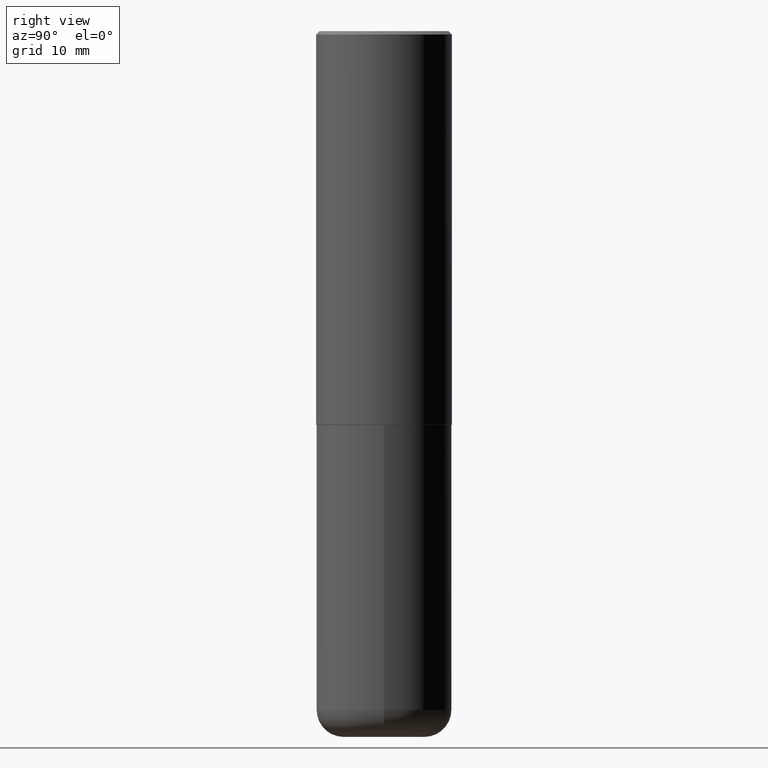
[diagram: clean part render]
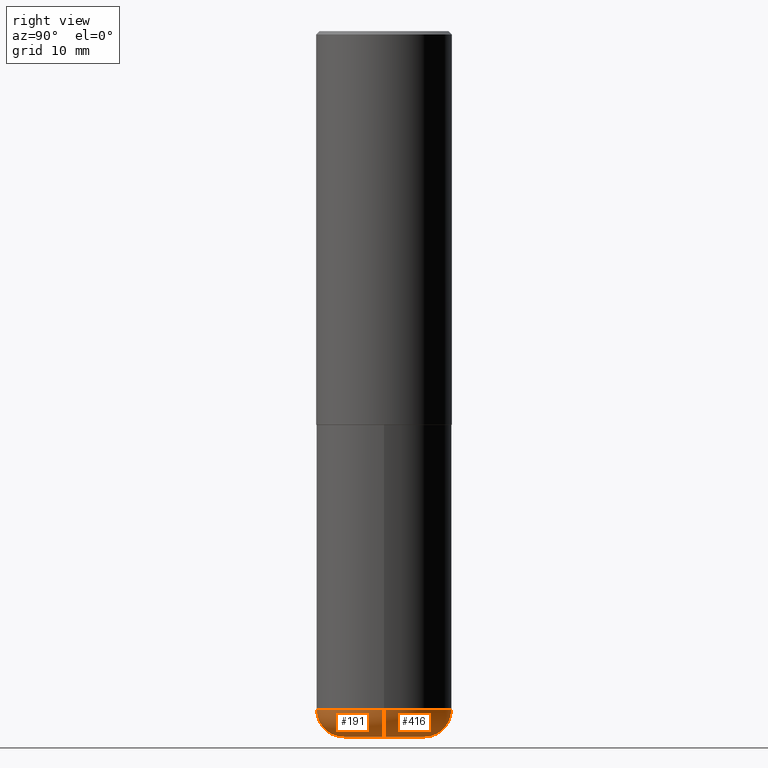
[diagram: same view with one multi-face feature highlighted, each face labeled with its STEP entity id]
A machine part, right view. The highlighted faces form ONE feature: a constant-radius fillet chain: 2 tangent blend faces with common blend radius 4.0005 mm. The faces share edges in the B-rep.
Their STEP definitions:
[1] entity #191 (Torus):
#1 = AXIS2_PLACEMENT_3D ( 'NONE', #91, #226, #31 ) ;
#11 = CARTESIAN_POINT ( 'NONE',  ( -0.3936999999999999389, -1.094855528033794942E-14, -3.937000000000000277 ) ) ;
#13 = DIRECTION ( 'NONE',  ( -2.445468806185136597E-29, 3.491481338843145583E-15, 1.000000000000000000 ) ) ;
#14 = FACE_OUTER_BOUND ( 'NONE', #178, .T. ) ;
#17 = TOROIDAL_SURFACE ( 'NONE', #117, 0.2362000000000000210, 0.1574999999999998346 ) ;
#22 = CARTESIAN_POINT ( 'NONE',  ( 0.2362000000000000210, -1.539533781549495994E-14, -3.937000000000000277 ) ) ;
#31 = DIRECTION ( 'NONE',  ( 1.000000000000000000, -6.982962677686262766E-15, 0.000000000000000000 ) ) ;
#41 = ORIENTED_EDGE ( 'NONE', *, *, #395, .F. ) ;
#55 = ORIENTED_EDGE ( 'NONE', *, *, #292, .T. ) ;
#85 = DIRECTION ( 'NONE',  ( 1.000000000000000000, -6.982962677686272233E-15, 0.000000000000000000 ) ) ;
#88 = DIRECTION ( 'NONE',  ( 7.105427357601001859E-15, 1.000000000000000000, -3.491481338843145583E-15 ) ) ;
#91 = CARTESIAN_POINT ( 'NONE',  ( 1.001297202692504102E-28, -1.429587034189325834E-14, -4.094500000000000028 ) ) ;
#99 = CIRCLE ( 'NONE', #330, 0.3937000000000000499 ) ;
#107 = CARTESIAN_POINT ( 'NONE',  ( 9.627810689950883669E-29, -1.374596203102546341E-14, -3.937000000000000277 ) ) ;
#117 = AXIS2_PLACEMENT_3D ( 'NONE', #107, #300, #248 ) ;
#137 = VERTEX_POINT ( 'NONE', #186 ) ;
#143 = CIRCLE ( 'NONE', #216, 0.1574999999999997791 ) ;
#153 = CARTESIAN_POINT ( 'NONE',  ( 0.2362000000000000766, -1.594524612636275486E-14, -4.094500000000000028 ) ) ;
#154 = EDGE_CURVE ( 'NONE', #197, #400, #99, .T. ) ;
#176 = ORIENTED_EDGE ( 'NONE', *, *, #265, .T. ) ;
#178 = EDGE_LOOP ( 'NONE', ( #41, #176, #55, #347 ) ) ;
#186 = CARTESIAN_POINT ( 'NONE',  ( -0.2362000000000000766, -1.178306184018292647E-14, -4.094500000000000028 ) ) ;
#191 = ADVANCED_FACE ( 'NONE', ( #14 ), #17, .T. ) ;
#197 = VERTEX_POINT ( 'NONE', #11 ) ;
#216 = AXIS2_PLACEMENT_3D ( 'NONE', #323, #88, #223 ) ;
#223 = DIRECTION ( 'NONE',  ( -1.000000000000000000, 7.105427357601006592E-15, 0.000000000000000000 ) ) ;
#226 = DIRECTION ( 'NONE',  ( -2.445468806185136597E-29, 3.491481338843145583E-15, 1.000000000000000000 ) ) ;
#248 = DIRECTION ( 'NONE',  ( 1.000000000000000000, -6.982962677686266711E-15, 4.883557194083112340E-29 ) ) ;
#252 = CIRCLE ( 'NONE', #408, 0.1574999999999997791 ) ;
#264 = VERTEX_POINT ( 'NONE', #153 ) ;
#265 = EDGE_CURVE ( 'NONE', #137, #264, #366, .T. ) ;
#277 = DIRECTION ( 'NONE',  ( 1.000000000000000000, -6.982962677686267499E-15, 0.000000000000000000 ) ) ;
#279 = DIRECTION ( 'NONE',  ( -6.982962677686266711E-15, -1.000000000000000000, 3.491481338843145583E-15 ) ) ;
#292 = EDGE_CURVE ( 'NONE', #264, #400, #252, .T. ) ;
#300 = DIRECTION ( 'NONE',  ( -2.445468806185136597E-29, 3.491481338843145583E-15, 1.000000000000000000 ) ) ;
#314 = CARTESIAN_POINT ( 'NONE',  ( 0.3936999999999999389, -1.649515443723054663E-14, -3.937000000000000277 ) ) ;
#323 = CARTESIAN_POINT ( 'NONE',  ( -0.2362000000000000210, -1.206766008916010702E-14, -3.937000000000000277 ) ) ;
#330 = AXIS2_PLACEMENT_3D ( 'NONE', #363, #13, #277 ) ;
#347 = ORIENTED_EDGE ( 'NONE', *, *, #154, .F. ) ;
#363 = CARTESIAN_POINT ( 'NONE',  ( 9.627810689950883669E-29, -1.374596203102546341E-14, -3.937000000000000277 ) ) ;
#366 = CIRCLE ( 'NONE', #1, 0.2362000000000000766 ) ;
#395 = EDGE_CURVE ( 'NONE', #137, #197, #143, .T. ) ;
#400 = VERTEX_POINT ( 'NONE', #314 ) ;
#408 = AXIS2_PLACEMENT_3D ( 'NONE', #22, #279, #85 ) ;
[2] entity #416 (Torus):
#11 = CARTESIAN_POINT ( 'NONE',  ( -0.3936999999999999389, -1.094855528033794942E-14, -3.937000000000000277 ) ) ;
#22 = CARTESIAN_POINT ( 'NONE',  ( 0.2362000000000000210, -1.539533781549495994E-14, -3.937000000000000277 ) ) ;
#35 = ORIENTED_EDGE ( 'NONE', *, *, #134, .T. ) ;
#45 = CARTESIAN_POINT ( 'NONE',  ( 9.627810689950883669E-29, -1.374596203102546341E-14, -3.937000000000000277 ) ) ;
#61 = DIRECTION ( 'NONE',  ( 1.000000000000000000, -6.982962677686267499E-15, 0.000000000000000000 ) ) ;
#70 = CARTESIAN_POINT ( 'NONE',  ( 9.627810689950883669E-29, -1.374596203102546341E-14, -3.937000000000000277 ) ) ;
#85 = DIRECTION ( 'NONE',  ( 1.000000000000000000, -6.982962677686272233E-15, 0.000000000000000000 ) ) ;
#88 = DIRECTION ( 'NONE',  ( 7.105427357601001859E-15, 1.000000000000000000, -3.491481338843145583E-15 ) ) ;
#103 = CIRCLE ( 'NONE', #196, 0.2362000000000000766 ) ;
#104 = CIRCLE ( 'NONE', #109, 0.3937000000000000499 ) ;
#109 = AXIS2_PLACEMENT_3D ( 'NONE', #45, #382, #61 ) ;
#134 = EDGE_CURVE ( 'NONE', #264, #137, #103, .T. ) ;
#137 = VERTEX_POINT ( 'NONE', #186 ) ;
#143 = CIRCLE ( 'NONE', #216, 0.1574999999999997791 ) ;
#153 = CARTESIAN_POINT ( 'NONE',  ( 0.2362000000000000766, -1.594524612636275486E-14, -4.094500000000000028 ) ) ;
#155 = DIRECTION ( 'NONE',  ( -2.445468806185136597E-29, 3.491481338843145583E-15, 1.000000000000000000 ) ) ;
#170 = AXIS2_PLACEMENT_3D ( 'NONE', #70, #241, #202 ) ;
#172 = ORIENTED_EDGE ( 'NONE', *, *, #318, .F. ) ;
#186 = CARTESIAN_POINT ( 'NONE',  ( -0.2362000000000000766, -1.178306184018292647E-14, -4.094500000000000028 ) ) ;
#196 = AXIS2_PLACEMENT_3D ( 'NONE', #414, #155, #229 ) ;
#197 = VERTEX_POINT ( 'NONE', #11 ) ;
#202 = DIRECTION ( 'NONE',  ( 1.000000000000000000, -6.982962677686266711E-15, 4.883557194083112340E-29 ) ) ;
#216 = AXIS2_PLACEMENT_3D ( 'NONE', #323, #88, #223 ) ;
#223 = DIRECTION ( 'NONE',  ( -1.000000000000000000, 7.105427357601006592E-15, 0.000000000000000000 ) ) ;
#229 = DIRECTION ( 'NONE',  ( 1.000000000000000000, -6.982962677686262766E-15, 0.000000000000000000 ) ) ;
#241 = DIRECTION ( 'NONE',  ( -2.445468806185136597E-29, 3.491481338843145583E-15, 1.000000000000000000 ) ) ;
#242 = TOROIDAL_SURFACE ( 'NONE', #170, 0.2362000000000000210, 0.1574999999999998346 ) ;
#252 = CIRCLE ( 'NONE', #408, 0.1574999999999997791 ) ;
#264 = VERTEX_POINT ( 'NONE', #153 ) ;
#279 = DIRECTION ( 'NONE',  ( -6.982962677686266711E-15, -1.000000000000000000, 3.491481338843145583E-15 ) ) ;
#292 = EDGE_CURVE ( 'NONE', #264, #400, #252, .T. ) ;
#296 = EDGE_LOOP ( 'NONE', ( #35, #396, #172, #343 ) ) ;
#314 = CARTESIAN_POINT ( 'NONE',  ( 0.3936999999999999389, -1.649515443723054663E-14, -3.937000000000000277 ) ) ;
#318 = EDGE_CURVE ( 'NONE', #400, #197, #104, .T. ) ;
#323 = CARTESIAN_POINT ( 'NONE',  ( -0.2362000000000000210, -1.206766008916010702E-14, -3.937000000000000277 ) ) ;
#343 = ORIENTED_EDGE ( 'NONE', *, *, #292, .F. ) ;
#382 = DIRECTION ( 'NONE',  ( -2.445468806185136597E-29, 3.491481338843145583E-15, 1.000000000000000000 ) ) ;
#395 = EDGE_CURVE ( 'NONE', #137, #197, #143, .T. ) ;
#396 = ORIENTED_EDGE ( 'NONE', *, *, #395, .T. ) ;
#400 = VERTEX_POINT ( 'NONE', #314 ) ;
#401 = FACE_OUTER_BOUND ( 'NONE', #296, .T. ) ;
#408 = AXIS2_PLACEMENT_3D ( 'NONE', #22, #279, #85 ) ;
#414 = CARTESIAN_POINT ( 'NONE',  ( 1.001297202692504102E-28, -1.429587034189325834E-14, -4.094500000000000028 ) ) ;
#416 = ADVANCED_FACE ( 'NONE', ( #401 ), #242, .T. ) ;